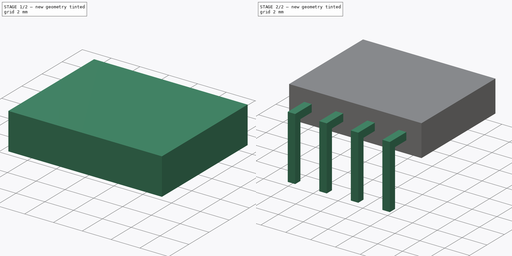
[diagram: build sequence overview — one tinted view per stage of 2, left to right]
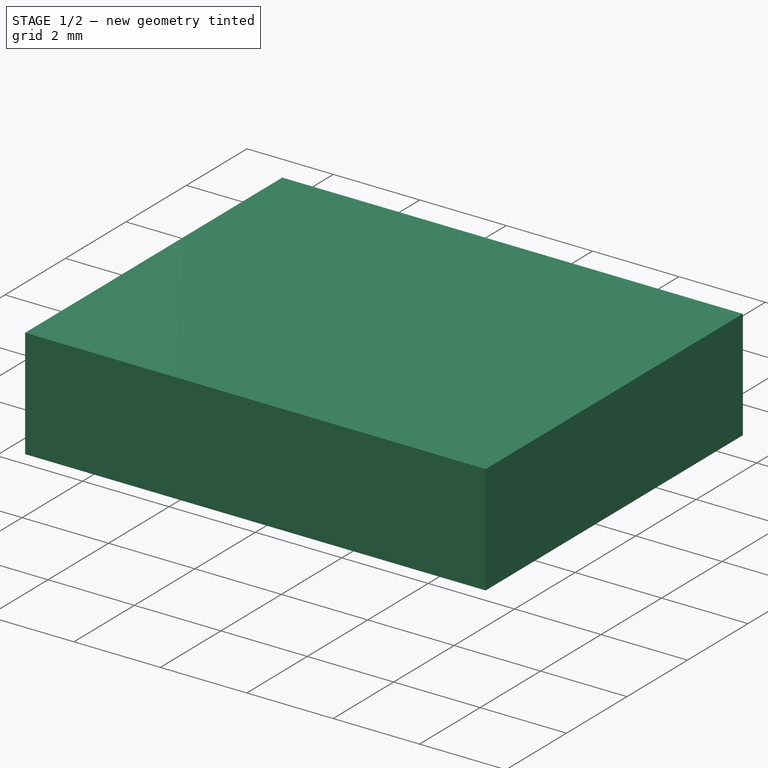
[diagram: stage 1 of 2 — iso view after this stage's code; geometry added in this stage tinted green]
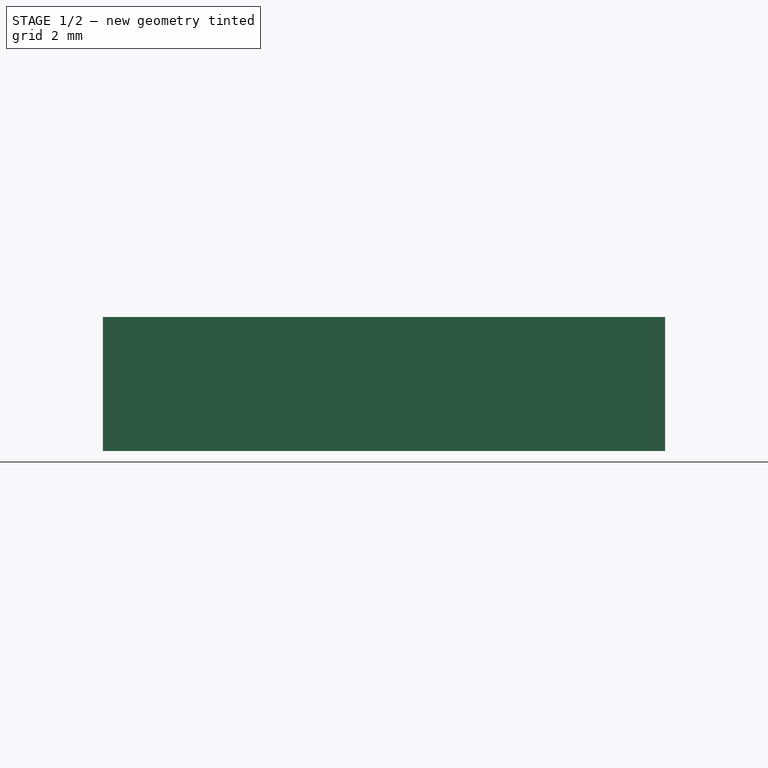
[diagram: stage 1 of 2 — front view after this stage's code; geometry added in this stage tinted green]
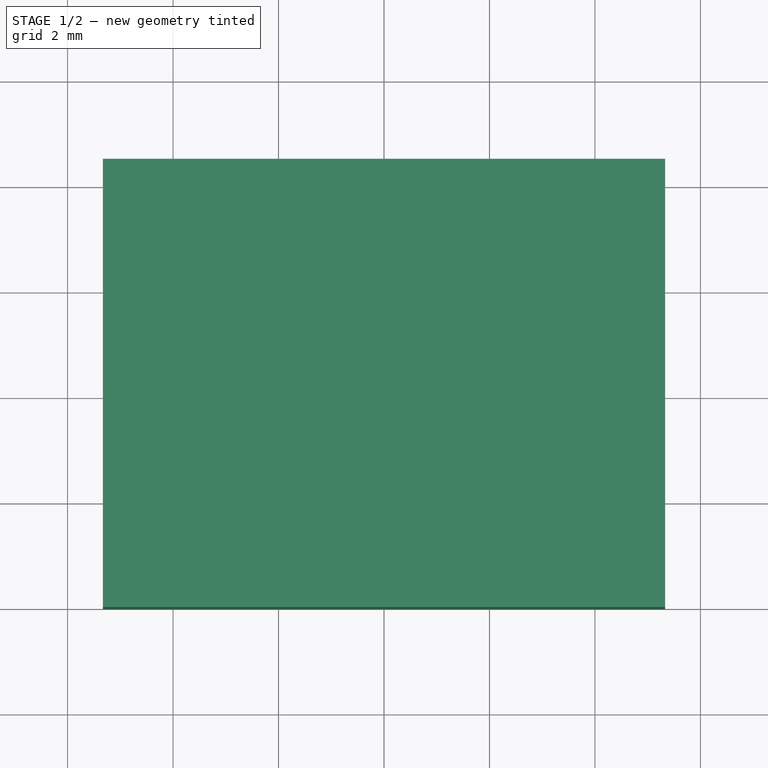
[diagram: stage 1 of 2 — top view after this stage's code; geometry added in this stage tinted green]
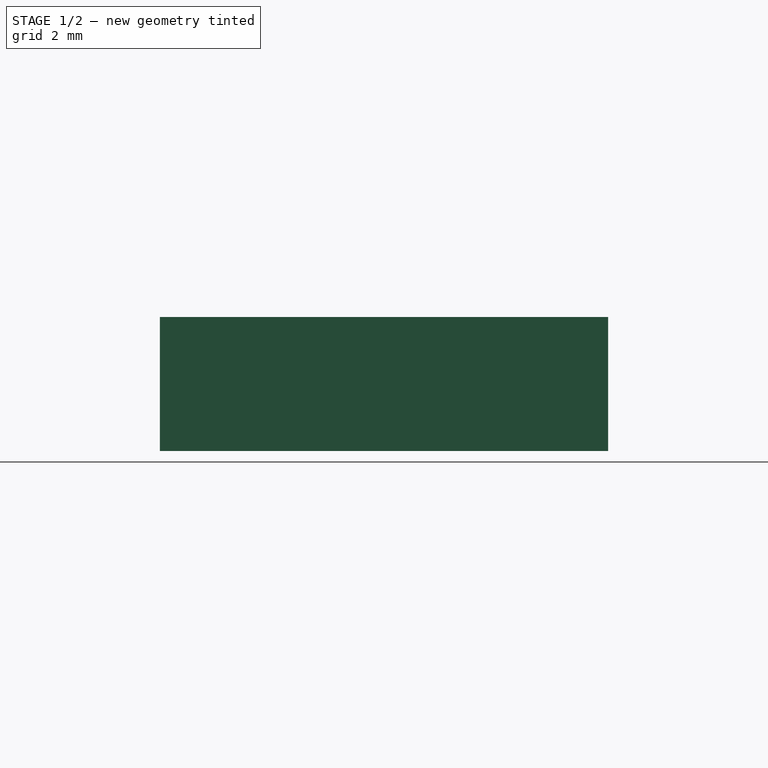
[diagram: stage 1 of 2 — right view after this stage's code; geometry added in this stage tinted green]
FCSTD DOCUMENT  (FreeCAD 0.15R4671 (Git))
Label: 4-pin header
License: All rights reserved
LicenseURL: http://en.wikipedia.org/wiki/All_rights_reserved
objects: Sketcher::SketchObject×4, PartDesign::Pad×3, PartDesign::Pocket×1
note: 12 computed .brp shape members not serialized (recipe doc carries the construction recipe); baked Part::Feature solids carry a one-line shape summary decoded from their .brp

FEATURE [Sketcher::SketchObject] Sketch
  sketch-geometry (4):
    g0: LineSegment StartX=-5.33 StartY=8.5 StartZ=0 EndX=5.33 EndY=8.5 EndZ=0
    g1: LineSegment StartX=5.33 StartY=8.5 StartZ=0 EndX=5.33 EndY=0 EndZ=0
    g2: LineSegment StartX=5.33 StartY=0 StartZ=0 EndX=-5.33 EndY=0 EndZ=0
    g3: LineSegment StartX=-5.33 StartY=0 StartZ=0 EndX=-5.33 EndY=8.5 EndZ=0
  constraints (12):
    c: Coincident(g0,g1)
    c: Coincident(g1,g2)
    c: Coincident(g2,g3)
    c: Coincident(g3,g0)
    c: Horizontal(g0)
    c: Horizontal(g2)
    c: Vertical(g1)
    c: Vertical(g3)
    c: PointOnObject(g1,g-1)
    c: DistanceY(g0,g2) = -8.5
    c: DistanceX(g0,g0) = 10.66
    c: Symmetric(g0,g0,g-2)
FEATURE [PartDesign::Pad] Pad
  Length = 2.54
  Length2 = 100
  Sketch = -> Sketch
  Type = 0
FEATURE [Sketcher::SketchObject] Sketch001
  ExternalGeometry = -> [Pad]
  Placement = pos=(0,8.5,0) rot=(0,0.707107,0.707107;3.14159rad)
  Support = -> Pad [Face1]
  sketch-geometry (24):
    g0: LineSegment StartX=-4.31 StartY=1.77 StartZ=0 EndX=-3.31 EndY=1.77 EndZ=0
    g1: LineSegment StartX=-3.31 StartY=1.77 StartZ=0 EndX=-3.31 EndY=0.77 EndZ=0
    g2: LineSegment StartX=-3.31 StartY=0.77 StartZ=0 EndX=-4.31 EndY=0.77 EndZ=0
    g3: LineSegment StartX=-4.31 StartY=0.77 StartZ=0 EndX=-4.31 EndY=1.77 EndZ=0
    g4: LineSegment StartX=-1.77 StartY=1.77 StartZ=0 EndX=-0.77 EndY=1.77 EndZ=0
    g5: LineSegment StartX=-0.77 StartY=1.77 StartZ=0 EndX=-0.77 EndY=0.77 EndZ=0
    g6: LineSegment StartX=-0.77 StartY=0.77 StartZ=0 EndX=-1.77 EndY=0.77 EndZ=0
    g7: LineSegment StartX=-1.77 StartY=0.77 StartZ=0 EndX=-1.77 EndY=1.77 EndZ=0
    g8: LineSegment StartX=0.77 StartY=1.77 StartZ=0 EndX=1.77 EndY=1.77 EndZ=0
    g9: LineSegment StartX=1.77 StartY=1.77 StartZ=0 EndX=1.77 EndY=0.77 EndZ=0
    g10: LineSegment StartX=1.77 StartY=0.77 StartZ=0 EndX=0.77 EndY=0.77 EndZ=0
    g11: LineSegment StartX=0.77 StartY=0.77 StartZ=0 EndX=0.77 EndY=1.77 EndZ=0
    g12: LineSegment StartX=3.31 StartY=1.77 StartZ=0 EndX=4.31 EndY=1.77 EndZ=0
    g13: LineSegment StartX=4.31 StartY=1.77 StartZ=0 EndX=4.31 EndY=0.77 EndZ=0
    g14: LineSegment StartX=4.31 StartY=0.77 StartZ=0 EndX=3.31 EndY=0.77 EndZ=0
    g15: LineSegment StartX=3.31 StartY=0.77 StartZ=0 EndX=3.31 EndY=1.77 EndZ=0
    g16: LineSegment [constr] StartX=-5.33 StartY=1.77 StartZ=0 EndX=-4.31 EndY=1.77 EndZ=0
    g17: LineSegment [constr] StartX=-3.31 StartY=1.77 StartZ=0 EndX=-1.77 EndY=1.77 EndZ=0
    g18: LineSegment [constr] StartX=-0.77 StartY=1.77 StartZ=0 EndX=0.77 EndY=1.77 EndZ=0
    g19: LineSegment [constr] StartX=1.77 StartY=1.77 StartZ=0 EndX=3.31 EndY=1.77 EndZ=0
    g20: LineSegment [constr] StartX=4.31 StartY=1.77 StartZ=0 EndX=5.33 EndY=1.77 EndZ=0
    g21: LineSegment [constr] StartX=-4.31 StartY=0.77 StartZ=0 EndX=-5.33 EndY=0.77 EndZ=0
    g22: LineSegment StartX=-5.33 StartY=1.77 StartZ=0 EndX=-5.33 EndY=2.54 EndZ=0
    g23: LineSegment [constr] StartX=-5.33 StartY=1.27 StartZ=0 EndX=5.33 EndY=1.27 EndZ=0
  constraints (68):
    c: Coincident(g0,g1)
    c: Coincident(g1,g2)
    c: Coincident(g2,g3)
    c: Coincident(g3,g0)
    c: Horizontal(g0)
    c: Horizontal(g2)
    c: Vertical(g1)
    c: Vertical(g3)
    c: Coincident(g4,g5)
    c: Coincident(g5,g6)
    c: Coincident(g6,g7)
    c: Coincident(g7,g4)
    c: Horizontal(g4)
    c: Horizontal(g6)
    c: Vertical(g5)
    c: Vertical(g7)
    c: Coincident(g8,g9)
    c: Coincident(g9,g10)
    c: Coincident(g10,g11)
    c: Coincident(g11,g8)
    c: Horizontal(g8)
    c: Horizontal(g10)
    c: Vertical(g9)
    c: Vertical(g11)
    c: Coincident(g12,g13)
    c: Coincident(g13,g14)
    c: Coincident(g14,g15)
    c: Coincident(g15,g12)
    c: Horizontal(g12)
    c: Horizontal(g14)
    c: Vertical(g13)
    c: Vertical(g15)
    c: PointOnObject(g16,g-3)
    c: Coincident(g16,g0)
    c: Horizontal(g16)
    c: Coincident(g17,g0)
    c: Coincident(g17,g4)
    c: Coincident(g18,g4)
    c: Coincident(g18,g8)
    c: Coincident(g19,g8)
    c: Coincident(g19,g12)
    c: Coincident(g20,g12)
    c: PointOnObject(g20,g-4)
    c: Horizontal(g20)
    c: Horizontal(g19)
    c: Horizontal(g18)
    c: Horizontal(g17)
    c: Equal(g17,g18)
    c: Equal(g18,g19)
    c: Equal(g4,g0)
    c: Equal(g0,g8)
    c: Equal(g8,g12)
    c: Symmetric(g8,g4,g-2)
    c: DistanceX(g2,g6) = 2.54
    c: Equal(g3,g0)
    c: Equal(g7,g3)
    c: Equal(g3,g11)
    c: Equal(g11,g15)
    c: DistanceX(g0,g0) = 1
    c: Coincident(g21,g2)
    c: PointOnObject(g21,g-3)
    c: Horizontal(g21)
    c: Coincident(g22,g16)
    c: Coincident(g22,g-5)
    c: PointOnObject(g23,g-3)
    c: PointOnObject(g23,g-4)
    c: Symmetric(g22,g-6,g23)
    c: Symmetric(g0,g2,g23)
FEATURE [PartDesign::Pocket] Pocket
  Length = 6.5
  Sketch = -> Sketch001
  Type = 0
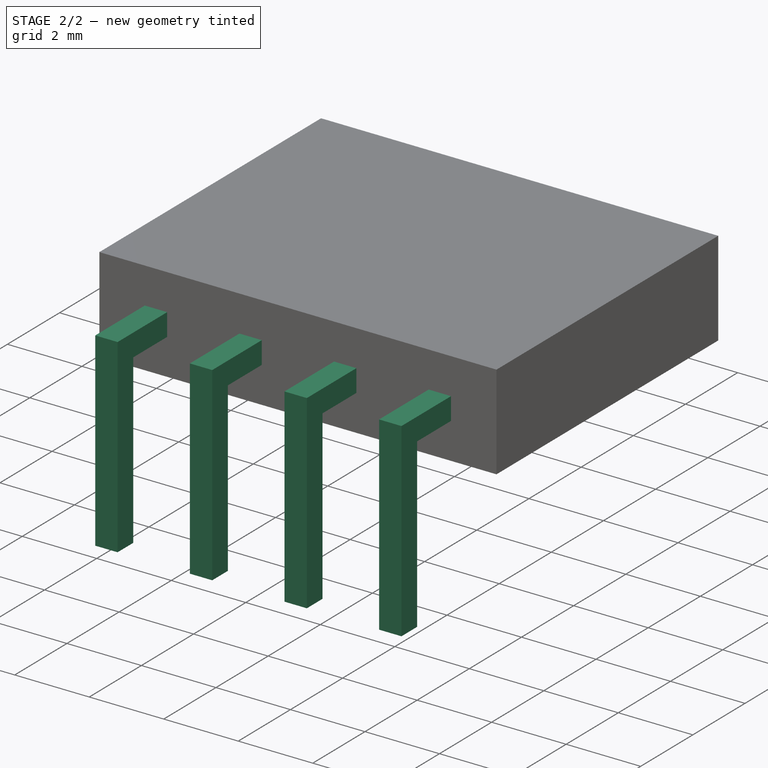
[diagram: stage 2 of 2 — iso view after this stage's code; geometry added in this stage tinted green]
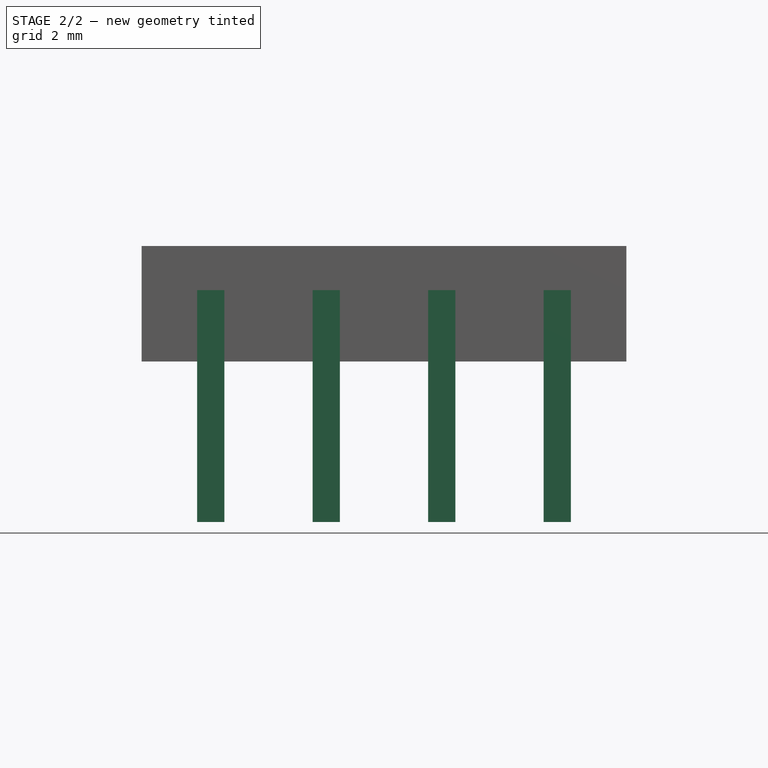
[diagram: stage 2 of 2 — front view after this stage's code; geometry added in this stage tinted green]
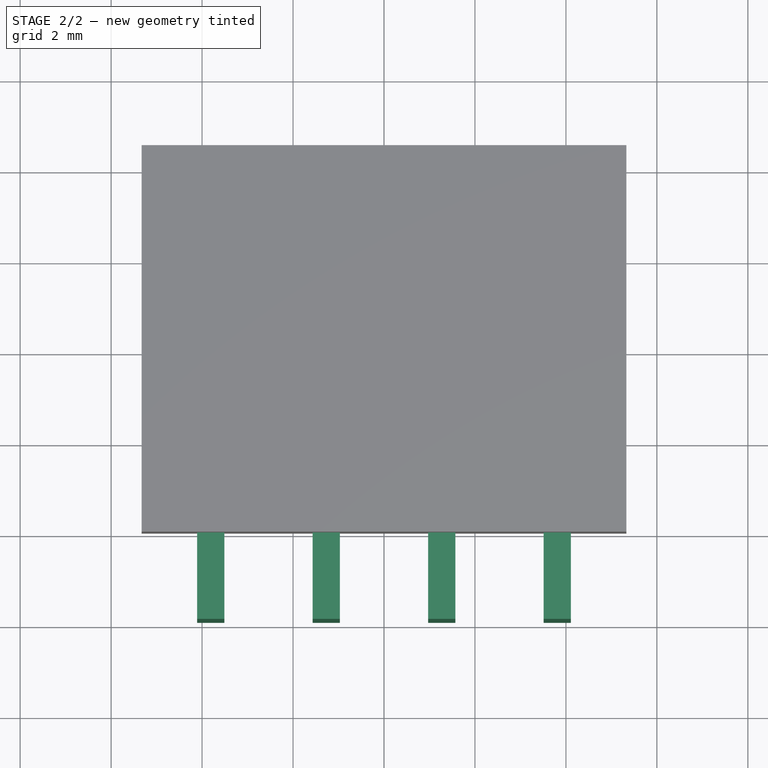
[diagram: stage 2 of 2 — top view after this stage's code; geometry added in this stage tinted green]
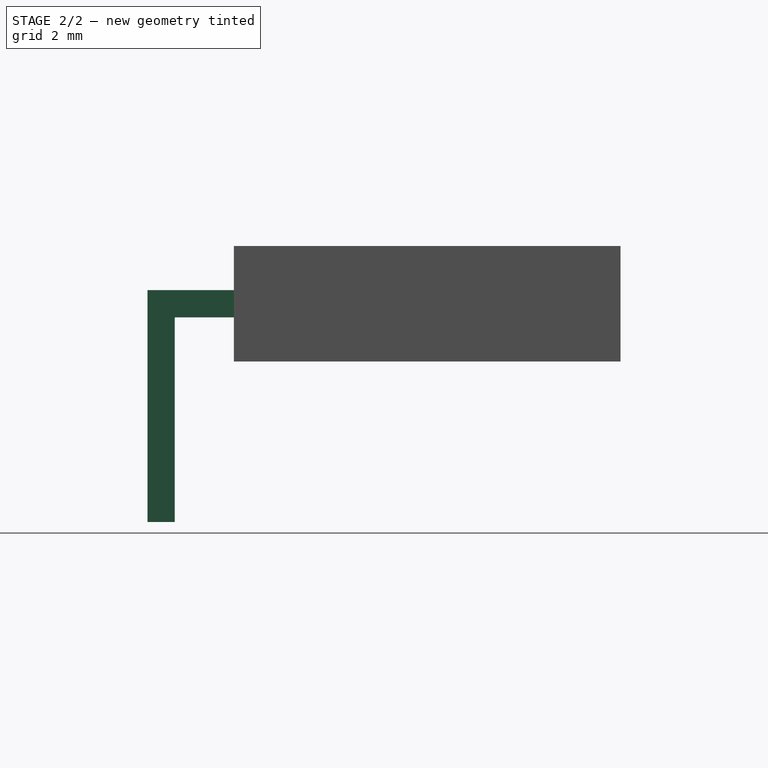
[diagram: stage 2 of 2 — right view after this stage's code; geometry added in this stage tinted green]
FEATURE [Sketcher::SketchObject] Sketch002
  ExternalGeometry = -> [Pocket]
  Placement = pos=(0,0,0) rot=(1,0,0;1.5708rad)
  Support = -> Pocket [Face22]
  sketch-geometry (21):
    g0: LineSegment StartX=-4.11 StartY=1.57 StartZ=0 EndX=-3.51 EndY=1.57 EndZ=0
    g1: LineSegment StartX=-3.51 StartY=1.57 StartZ=0 EndX=-3.51 EndY=0.97 EndZ=0
    g2: LineSegment StartX=-3.51 StartY=0.97 StartZ=0 EndX=-4.11 EndY=0.97 EndZ=0
    g3: LineSegment StartX=-4.11 StartY=0.97 StartZ=0 EndX=-4.11 EndY=1.57 EndZ=0
    g4: LineSegment StartX=-1.57 StartY=1.57 StartZ=0 EndX=-0.97 EndY=1.57 EndZ=0
    g5: LineSegment StartX=-0.97 StartY=1.57 StartZ=0 EndX=-0.97 EndY=0.97 EndZ=0
    g6: LineSegment StartX=-0.97 StartY=0.97 StartZ=0 EndX=-1.57 EndY=0.97 EndZ=0
    g7: LineSegment StartX=-1.57 StartY=0.97 StartZ=0 EndX=-1.57 EndY=1.57 EndZ=0
    g8: LineSegment StartX=0.97 StartY=1.57 StartZ=0 EndX=1.57 EndY=1.57 EndZ=0
    g9: LineSegment StartX=1.57 StartY=1.57 StartZ=0 EndX=1.57 EndY=0.97 EndZ=0
    g10: LineSegment StartX=1.57 StartY=0.97 StartZ=0 EndX=0.97 EndY=0.97 EndZ=0
    g11: LineSegment StartX=0.97 StartY=0.97 StartZ=0 EndX=0.97 EndY=1.57 EndZ=0
    g12: LineSegment StartX=3.51 StartY=1.57 StartZ=0 EndX=4.11 EndY=1.57 EndZ=0
    g13: LineSegment StartX=4.11 StartY=1.57 StartZ=0 EndX=4.11 EndY=0.97 EndZ=0
    g14: LineSegment StartX=4.11 StartY=0.97 StartZ=0 EndX=3.51 EndY=0.97 EndZ=0
    g15: LineSegment StartX=3.51 StartY=0.97 StartZ=0 EndX=3.51 EndY=1.57 EndZ=0
    g16: LineSegment [constr] StartX=-3.51 StartY=1.57 StartZ=0 EndX=-1.57 EndY=1.57 EndZ=0
    g17: LineSegment [constr] StartX=-0.97 StartY=1.57 StartZ=0 EndX=0.97 EndY=1.57 EndZ=0
    g18: LineSegment [constr] StartX=1.57 StartY=1.57 StartZ=0 EndX=3.51 EndY=1.57 EndZ=0
    g19: LineSegment [constr] StartX=-0.97 StartY=1.57 StartZ=0 EndX=-0.97 EndY=2.54 EndZ=0
    g20: LineSegment [constr] StartX=-0.97 StartY=0.97 StartZ=0 EndX=-0.97 EndY=0 EndZ=0
  constraints (60):
    c: Coincident(g0,g1)
    c: Coincident(g1,g2)
    c: Coincident(g2,g3)
    c: Coincident(g3,g0)
    c: Horizontal(g0)
    c: Horizontal(g2)
    c: Vertical(g1)
    c: Vertical(g3)
    c: Coincident(g4,g5)
    c: Coincident(g5,g6)
    c: Coincident(g6,g7)
    c: Coincident(g7,g4)
    c: Horizontal(g4)
    c: Horizontal(g6)
    c: Vertical(g5)
    c: Vertical(g7)
    c: Coincident(g8,g9)
    c: Coincident(g9,g10)
    c: Coincident(g10,g11)
    c: Coincident(g11,g8)
    c: Horizontal(g8)
    c: Horizontal(g10)
    c: Vertical(g9)
    c: Vertical(g11)
    c: Coincident(g12,g13)
    c: Coincident(g13,g14)
    c: Coincident(g14,g15)
    c: Coincident(g15,g12)
    c: Horizontal(g12)
    c: Horizontal(g14)
    c: Vertical(g13)
    c: Vertical(g15)
    c: Equal(g0,g4)
    c: Equal(g4,g8)
    c: Equal(g8,g12)
    c: Equal(g3,g7)
    c: Equal(g7,g11)
    c: Equal(g11,g15)
    c: Equal(g0,g3)
    c: DistanceX(g0) = 0.6
    c: Coincident(g16,g0)
    c: Coincident(g16,g4)
    c: Coincident(g17,g4)
    c: Coincident(g17,g8)
    c: Coincident(g18,g8)
    c: Coincident(g18,g12)
    c: Equal(g16,g17)
    c: Equal(g17,g18)
    c: Horizontal(g17)
    c: Horizontal(g16)
    c: Horizontal(g18)
    c: Symmetric(g4,g8,g-2)
    c: DistanceX(g6,g2) = -2.54
    c: Coincident(g19,g4)
    c: PointOnObject(g19,g-3)
    c: Vertical(g19)
    c: Coincident(g20,g5)
    c: PointOnObject(g20,g-1)
    c: Vertical(g20)
    c: Equal(g19,g20)
FEATURE [PartDesign::Pad] Pad001
  Length = 1.9
  Length2 = 100
  Sketch = -> Sketch002
  Type = 0
FEATURE [Sketcher::SketchObject] Sketch003
  ExternalGeometry = -> [Pad001]
  Placement = pos=(0,0,0.97) rot=(1,0,0;3.14159rad)
  Support = -> Pad001 [Face27]
  sketch-geometry (19):
    g0: LineSegment StartX=-4.11 StartY=1.9 StartZ=0 EndX=-3.51 EndY=1.9 EndZ=0
    g1: LineSegment StartX=-3.51 StartY=1.9 StartZ=0 EndX=-3.51 EndY=1.3 EndZ=0
    g2: LineSegment StartX=-3.51 StartY=1.3 StartZ=0 EndX=-4.11 EndY=1.3 EndZ=0
    g3: LineSegment StartX=-4.11 StartY=1.3 StartZ=0 EndX=-4.11 EndY=1.9 EndZ=0
    g4: LineSegment StartX=-1.57 StartY=1.9 StartZ=0 EndX=-0.97 EndY=1.9 EndZ=0
    g5: LineSegment StartX=-0.97 StartY=1.9 StartZ=0 EndX=-0.97 EndY=1.3 EndZ=0
    g6: LineSegment StartX=-0.97 StartY=1.3 StartZ=0 EndX=-1.57 EndY=1.3 EndZ=0
    g7: LineSegment StartX=-1.57 StartY=1.3 StartZ=0 EndX=-1.57 EndY=1.9 EndZ=0
    g8: LineSegment StartX=0.97 StartY=1.9 StartZ=0 EndX=1.57 EndY=1.9 EndZ=0
    g9: LineSegment StartX=1.57 StartY=1.9 StartZ=0 EndX=1.57 EndY=1.3 EndZ=0
    g10: LineSegment StartX=1.57 StartY=1.3 StartZ=0 EndX=0.97 EndY=1.3 EndZ=0
    g11: LineSegment StartX=0.97 StartY=1.3 StartZ=0 EndX=0.97 EndY=1.9 EndZ=0
    g12: LineSegment StartX=3.51 StartY=1.9 StartZ=0 EndX=4.11 EndY=1.9 EndZ=0
    g13: LineSegment StartX=4.11 StartY=1.9 StartZ=0 EndX=4.11 EndY=1.3 EndZ=0
    g14: LineSegment StartX=4.11 StartY=1.3 StartZ=0 EndX=3.51 EndY=1.3 EndZ=0
    g15: LineSegment StartX=3.51 StartY=1.3 StartZ=0 EndX=3.51 EndY=1.9 EndZ=0
    g16: LineSegment [constr] StartX=-3.51 StartY=1.3 StartZ=0 EndX=-1.57 EndY=1.3 EndZ=0
    g17: LineSegment [constr] StartX=-0.97 StartY=1.3 StartZ=0 EndX=0.97 EndY=1.3 EndZ=0
    g18: LineSegment [constr] StartX=1.57 StartY=1.3 StartZ=0 EndX=3.51 EndY=1.3 EndZ=0
  constraints (52):
    c: Coincident(g0,g1)
    c: Coincident(g1,g2)
    c: Coincident(g2,g3)
    c: Coincident(g3,g0)
    c: Horizontal(g0)
    c: Horizontal(g2)
    c: Vertical(g1)
    c: Vertical(g3)
    c: Coincident(g0,g-3)
    c: PointOnObject(g1,g-7)
    c: Coincident(g4,g5)
    c: Coincident(g5,g6)
    c: Coincident(g6,g7)
    c: Coincident(g7,g4)
    c: Horizontal(g4)
    c: Horizontal(g6)
    c: Vertical(g5)
    c: Vertical(g7)
    c: Coincident(g4,g-4)
    c: PointOnObject(g5,g-8)
    c: Coincident(g8,g9)
    c: Coincident(g9,g10)
    c: Coincident(g10,g11)
    c: Coincident(g11,g8)
    c: Horizontal(g8)
    c: Horizontal(g10)
    c: Vertical(g9)
    c: Vertical(g11)
    c: Coincident(g8,g-5)
    c: PointOnObject(g9,g-9)
    c: Coincident(g12,g13)
    c: Coincident(g13,g14)
    c: Coincident(g14,g15)
    c: Coincident(g15,g12)
    c: Horizontal(g12)
    c: Horizontal(g14)
    c: Vertical(g13)
    c: Vertical(g15)
    c: Coincident(g12,g-6)
    c: PointOnObject(g13,g-10)
    c: Coincident(g16,g1)
    c: Coincident(g16,g6)
    c: Horizontal(g16)
    c: Coincident(g17,g5)
    c: Coincident(g17,g10)
    c: Horizontal(g17)
    c: Coincident(g18,g9)
    c: Coincident(g18,g14)
    c: Horizontal(g18)
    c: Equal(g16,g17)
    c: Equal(g17,g18)
    c: DistanceY(g2,g0) = 0.6
FEATURE [PartDesign::Pad] Pad002
  Length = 4.5
  Length2 = 100
  Sketch = -> Sketch003
  Type = 0
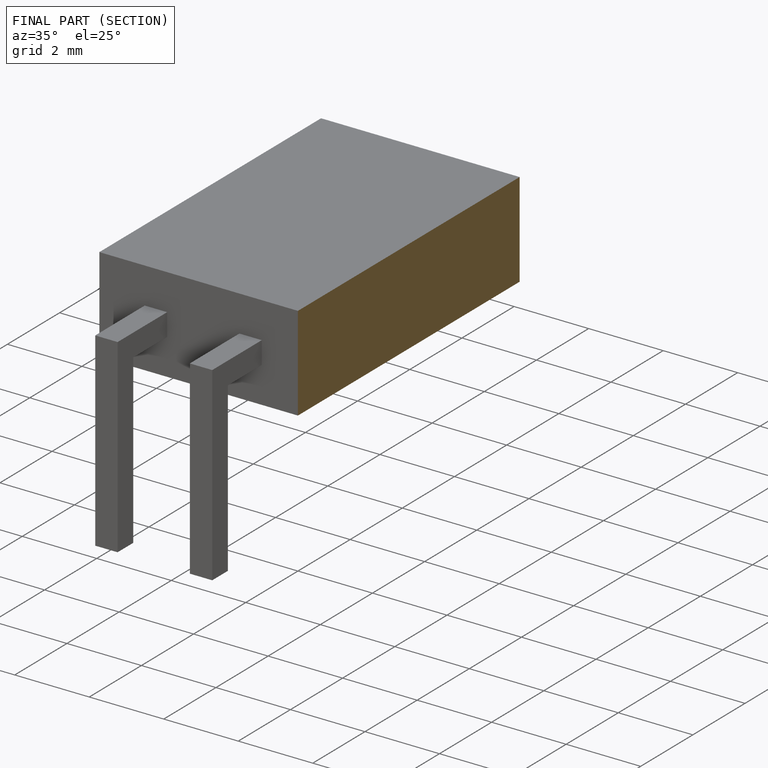
[diagram: finished part — half-section view (interior)]
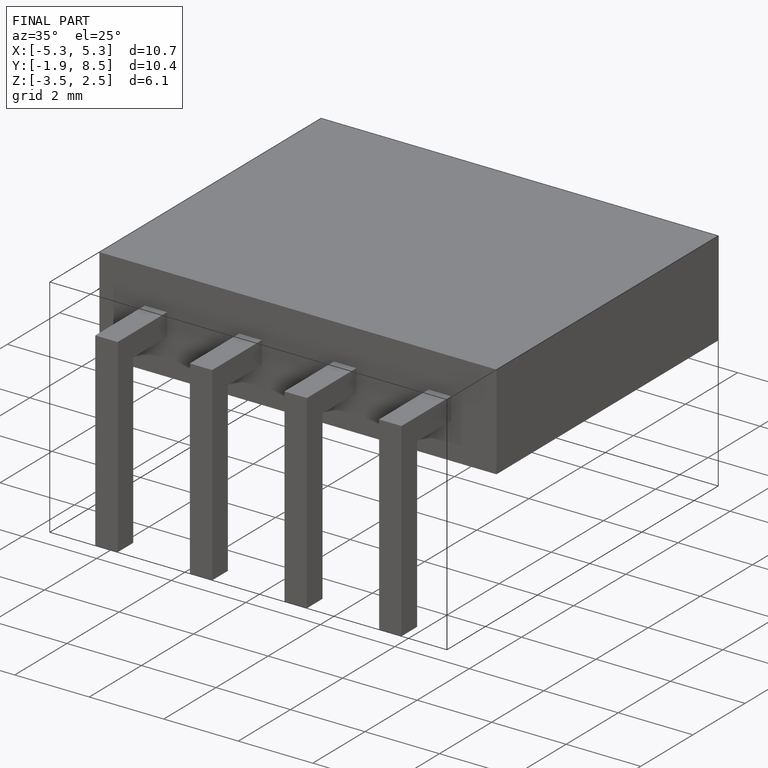
[diagram: finished part — iso view with bounding-box wireframe]
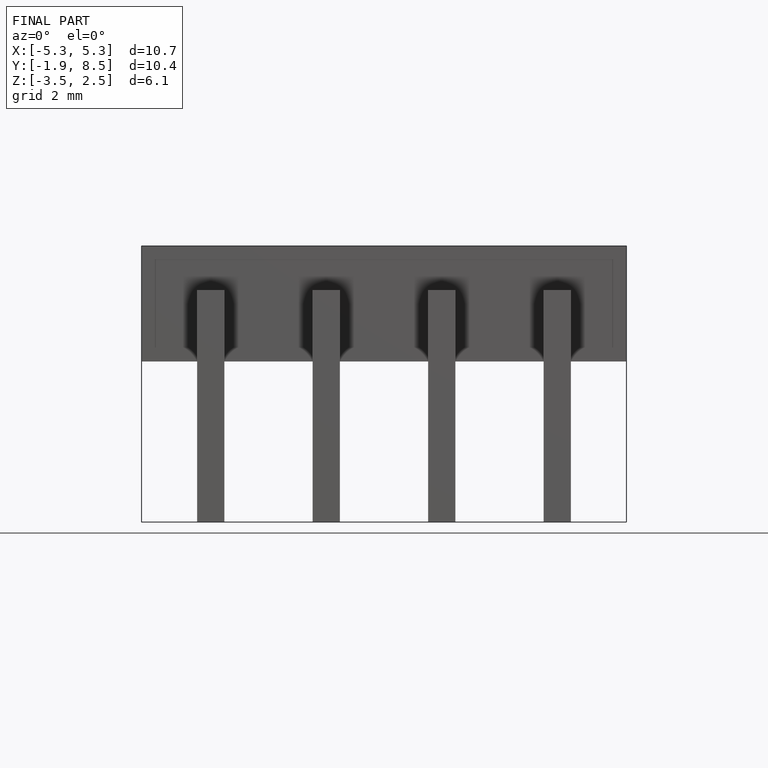
[diagram: finished part — front view with bounding-box wireframe]
